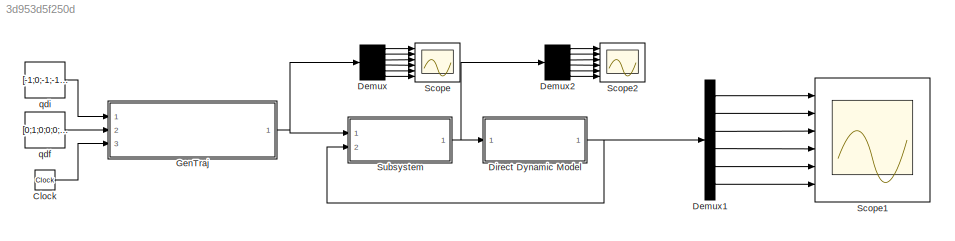
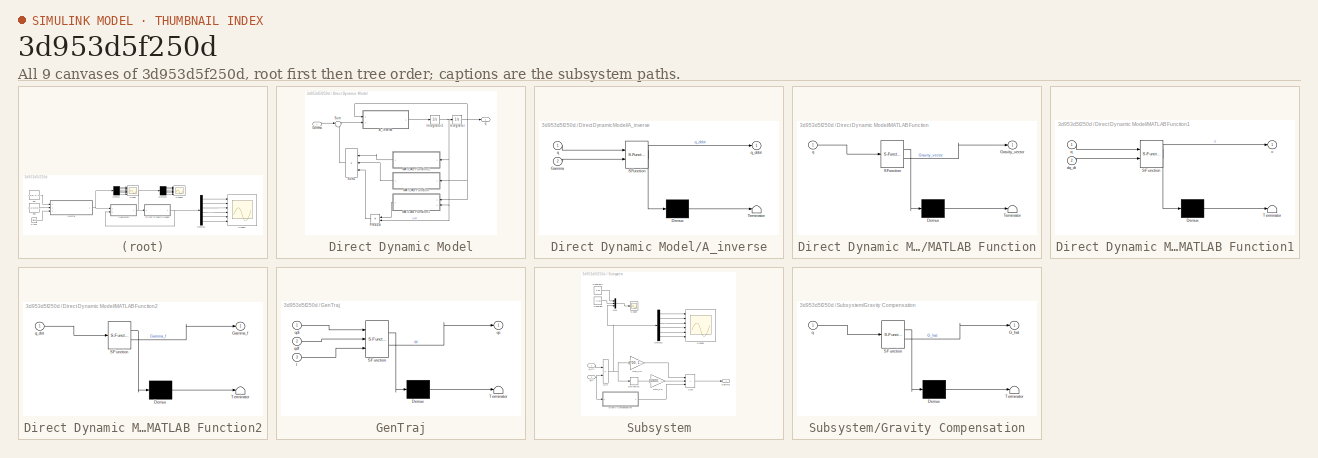
[diagram: thumbnail index - all 9 canvases of the model, root first then tree order]
MODEL slx_3d953d5f250d
KIND model
CONFIG AbsTol = auto
CONFIG EnableMultiTasking = off
CONFIG FixedStep = auto
CONFIG MaxStep = auto
CONFIG MinStep = auto
CONFIG RelTol = 1e-3
CONFIG SampleTimeConstraint = Unconstrained
CONFIG SolverName = VariableStepAuto
CONFIG StartTime = 0.0
CONFIG StopTime = 1
BLOCK [Clock] Clock
BLOCK [Demux] Demux
  Outputs = 6
  Ports = [1, 6]
BLOCK [Demux] Demux1
  Outputs = 6
  Ports = [1, 6]
BLOCK [Demux] Demux2
  Outputs = 6
  Ports = [1, 6]
BLOCK [SubSystem] Direct Dynamic Model
  Ports = [1, 1]
  RequestExecContextInheritance = off
BLOCK [SubSystem] Direct Dynamic Model/A_inverse
  ErrorFcn = Stateflow.Translate.translate
  PermitHierarchicalResolution = ExplicitOnly
  Ports = [2, 1]
  RequestExecContextInheritance = off
  SFBlockType = MATLAB Function
  TreatAsAtomicUnit = on
BLOCK [Demux] Direct Dynamic Model/A_inverse/ Demux 
  Outputs = 1
  Ports = [1, 1]
BLOCK [S-Function] Direct Dynamic Model/A_inverse/ SFunction 
  EnableBusSupport = on
  FunctionName = sf_sfun
  PortCounts = [2 2]
  Ports = [2, 2]
  SFcnIsStateOwnerBlock = off
  SFunctionDeploymentMode = off
  Tag = Stateflow S-Function 2
BLOCK [Terminator] Direct Dynamic Model/A_inverse/ Terminator 
BLOCK [Inport] Direct Dynamic Model/A_inverse/Gamma
  Port = 2
BLOCK [Inport] Direct Dynamic Model/A_inverse/q
BLOCK [Outport] Direct Dynamic Model/A_inverse/q_ddot
BLOCK [Inport] Direct Dynamic Model/Gamma
BLOCK [Integrator] Direct Dynamic Model/Integrator
  InitialCondition = [-1,\n0,\n-1,\n-1,\n-1,\n-1]
  Ports = [1, 1]
BLOCK [Integrator] Direct Dynamic Model/Integrator1
  Ports = [1, 1]
BLOCK [SubSystem] Direct Dynamic Model/MATLAB Function
  ErrorFcn = Stateflow.Translate.translate
  PermitHierarchicalResolution = ExplicitOnly
  Ports = [1, 1]
  RequestExecContextInheritance = off
  SFBlockType = MATLAB Function
  TreatAsAtomicUnit = on
BLOCK [Demux] Direct Dynamic Model/MATLAB Function/ Demux 
  Outputs = 1
  Ports = [1, 1]
BLOCK [S-Function] Direct Dynamic Model/MATLAB Function/ SFunction 
  EnableBusSupport = on
  FunctionName = sf_sfun
  PortCounts = [1 2]
  Ports = [1, 2]
  SFcnIsStateOwnerBlock = off
  SFunctionDeploymentMode = off
  Tag = Stateflow S-Function 1
BLOCK [Terminator] Direct Dynamic Model/MATLAB Function/ Terminator 
BLOCK [Outport] Direct Dynamic Model/MATLAB Function/Gravity_vector
BLOCK [Inport] Direct Dynamic Model/MATLAB Function/q
BLOCK [SubSystem] Direct Dynamic Model/MATLAB Function1
  ErrorFcn = Stateflow.Translate.translate
  PermitHierarchicalResolution = ExplicitOnly
  Ports = [2, 1]
  RequestExecContextInheritance = off
  SFBlockType = MATLAB Function
  TreatAsAtomicUnit = on
BLOCK [Demux] Direct Dynamic Model/MATLAB Function1/ Demux 
  Outputs = 1
  Ports = [1, 1]
BLOCK [S-Function] Direct Dynamic Model/MATLAB Function1/ SFunction 
  EnableBusSupport = on
  FunctionName = sf_sfun
  PortCounts = [2 2]
  Ports = [2, 2]
  SFcnIsStateOwnerBlock = off
  SFunctionDeploymentMode = off
  Tag = Stateflow S-Function 5
BLOCK [Terminator] Direct Dynamic Model/MATLAB Function1/ Terminator 
BLOCK [Outport] Direct Dynamic Model/MATLAB Function1/c
BLOCK [Inport] Direct Dynamic Model/MATLAB Function1/dq_dt
  Port = 2
BLOCK [Inport] Direct Dynamic Model/MATLAB Function1/q
BLOCK [SubSystem] Direct Dynamic Model/MATLAB Function2
  ErrorFcn = Stateflow.Translate.translate
  PermitHierarchicalResolution = ExplicitOnly
  Ports = [1, 1]
  RequestExecContextInheritance = off
  SFBlockType = MATLAB Function
  TreatAsAtomicUnit = on
BLOCK [Demux] Direct Dynamic Model/MATLAB Function2/ Demux 
  Outputs = 1
  Ports = [1, 1]
BLOCK [S-Function] Direct Dynamic Model/MATLAB Function2/ SFunction 
  EnableBusSupport = on
  FunctionName = sf_sfun
  PortCounts = [1 2]
  Ports = [1, 2]
  SFcnIsStateOwnerBlock = off
  SFunctionDeploymentMode = off
  Tag = Stateflow S-Function 6
BLOCK [Terminator] Direct Dynamic Model/MATLAB Function2/ Terminator 
BLOCK [Outport] Direct Dynamic Model/MATLAB Function2/Gamma_f
BLOCK [Inport] Direct Dynamic Model/MATLAB Function2/q_dot
BLOCK [Product] Direct Dynamic Model/Product
  Ports = [2, 1]
BLOCK [Sum] Direct Dynamic Model/Sum
  Inputs = |+-
  Ports = [2, 1]
BLOCK [Sum] Direct Dynamic Model/Sum1
  IconShape = rectangular
  Inputs = +++
  Ports = [3, 1]
BLOCK [Outport] Direct Dynamic Model/q
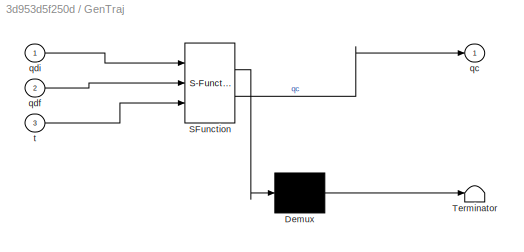
BLOCK [SubSystem] GenTraj
  ErrorFcn = Stateflow.Translate.translate
  PermitHierarchicalResolution = ExplicitOnly
  Ports = [3, 1]
  RequestExecContextInheritance = off
  SFBlockType = MATLAB Function
  TreatAsAtomicUnit = on
BLOCK [Demux] GenTraj/ Demux 
  Outputs = 1
  Ports = [1, 1]
BLOCK [S-Function] GenTraj/ SFunction 
  EnableBusSupport = on
  FunctionName = sf_sfun
  PortCounts = [3 2]
  Ports = [3, 2]
  SFcnIsStateOwnerBlock = off
  SFunctionDeploymentMode = off
  Tag = Stateflow S-Function 3
BLOCK [Terminator] GenTraj/ Terminator 
BLOCK [Outport] GenTraj/qc
BLOCK [Inport] GenTraj/qdf
  Port = 2
BLOCK [Inport] GenTraj/qdi
BLOCK [Inport] GenTraj/t
  Port = 3
BLOCK [Scope] Scope
  Floating = off
  NumInputPorts = 6
  Ports = [6]
  ScopeSpecificationString = Simulink.scopes.TimeScopeBlockCfg('CurrentConfiguration', extmgr.ConfigurationSet(extmgr.Configuration('Core','General UI',true),extmgr.Configuration('Core','Source UI',true),extmgr.Configuration('Sources','WiredSimulink',true),extmgr.Configuration('Visuals','Time Domain',true,'SerializedDisplays',{struct('MinYLimReal','-1.125','MaxYLimReal','0.125','YLabelReal','','MinYLimMag','0.00000','MaxYLimM...<+4758ch>
BLOCK [Scope] Scope1
  Floating = off
  NumInputPorts = 6
  Ports = [6]
  ScopeSpecificationString = Simulink.scopes.TimeScopeBlockCfg('CurrentConfiguration', extmgr.ConfigurationSet(extmgr.Configuration('Core','General UI',true),extmgr.Configuration('Core','Source UI',true),extmgr.Configuration('Sources','WiredSimulink',true,'DataLoggingVariableName','ScopeData1'),extmgr.Configuration('Visuals','Time Domain',true,'SerializedDisplays',{struct('MinYLimReal','-1.12674','MaxYLimReal','0.14062','YLab...<+4855ch>
BLOCK [Scope] Scope2
  Floating = off
  NumInputPorts = 6
  Ports = [6]
  ScopeSpecificationString = Simulink.scopes.TimeScopeBlockCfg('CurrentConfiguration', extmgr.ConfigurationSet(extmgr.Configuration('Core','General UI',true),extmgr.Configuration('Core','Source UI',true),extmgr.Configuration('Sources','WiredSimulink',true,'DataLoggingVariableName','ScopeData2'),extmgr.Configuration('Visuals','Time Domain',true,'SerializedDisplays',{struct('MinYLimReal','-566.80192','MaxYLimReal','341.01203','...<+4918ch>
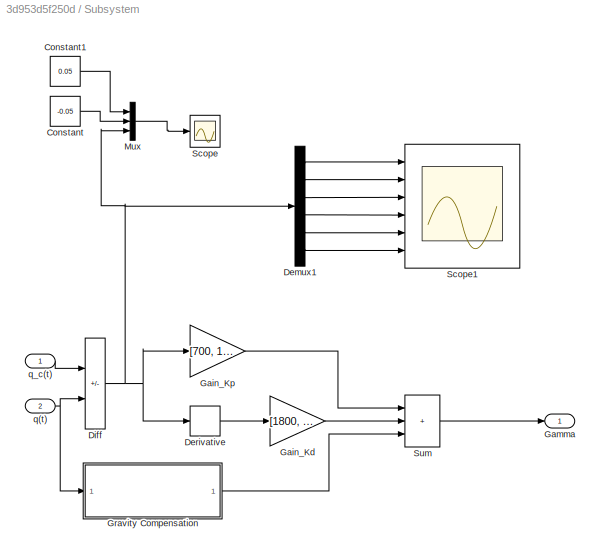
BLOCK [SubSystem] Subsystem
  Ports = [2, 1]
  RequestExecContextInheritance = off
BLOCK [Constant] Subsystem/Constant
  Value = -0.05
BLOCK [Constant] Subsystem/Constant1
  Value = 0.05
BLOCK [Demux] Subsystem/Demux1
  Outputs = 6
  Ports = [1, 6]
BLOCK [Derivative] Subsystem/Derivative
BLOCK [Sum] Subsystem/Diff
  IconShape = rectangular
  Inputs = +-
  Ports = [2, 1]
BLOCK [Gain] Subsystem/Gain_Kd
  Gain = [1800, 1300, 300, 5, 5, 5]
BLOCK [Gain] Subsystem/Gain_Kp
  Gain = [700, 1500, 1200, 1200, 1200, 1200]
BLOCK [Outport] Subsystem/Gamma
BLOCK [SubSystem] Subsystem/Gravity Compensation
  ErrorFcn = Stateflow.Translate.translate
  PermitHierarchicalResolution = ExplicitOnly
  Ports = [1, 1]
  RequestExecContextInheritance = off
  SFBlockType = MATLAB Function
  TreatAsAtomicUnit = on
BLOCK [Demux] Subsystem/Gravity Compensation/ Demux 
  Outputs = 1
  Ports = [1, 1]
BLOCK [S-Function] Subsystem/Gravity Compensation/ SFunction 
  EnableBusSupport = on
  FunctionName = sf_sfun
  PortCounts = [1 2]
  Ports = [1, 2]
  SFcnIsStateOwnerBlock = off
  SFunctionDeploymentMode = off
  Tag = Stateflow S-Function 4
BLOCK [Terminator] Subsystem/Gravity Compensation/ Terminator 
BLOCK [Outport] Subsystem/Gravity Compensation/G_hat
BLOCK [Inport] Subsystem/Gravity Compensation/q
BLOCK [Mux] Subsystem/Mux
  DisplayOption = bar
  Inputs = 3
  Ports = [3, 1]
BLOCK [Scope] Subsystem/Scope
  Floating = off
  NumInputPorts = 1
  Ports = [1]
  ScopeSpecificationString = Simulink.scopes.TimeScopeBlockCfg('CurrentConfiguration', extmgr.ConfigurationSet(extmgr.Configuration('Core','General UI',true),extmgr.Configuration('Core','Source UI',true),extmgr.Configuration('Sources','WiredSimulink',true,'DataLoggingVariableName','ScopeData3'),extmgr.Configuration('Visuals','Time Domain',true,'SerializedDisplays',{struct('MinYLimReal','-0.0625','MaxYLimReal','0.0625','YLabel...<+1640ch>
BLOCK [Scope] Subsystem/Scope1
  Floating = off
  NumInputPorts = 6
  Ports = [6]
  ScopeSpecificationString = Simulink.scopes.TimeScopeBlockCfg('CurrentConfiguration', extmgr.ConfigurationSet(extmgr.Configuration('Core','General UI',true),extmgr.Configuration('Core','Source UI',true),extmgr.Configuration('Sources','WiredSimulink',true,'DataLoggingVariableName','ScopeData1'),extmgr.Configuration('Visuals','Time Domain',true,'SerializedDisplays',{struct('MinYLimReal','-0.01806','MaxYLimReal','0.02369','YLab...<+4858ch>
BLOCK [Sum] Subsystem/Sum
  IconShape = rectangular
  Inputs = +++
  Ports = [3, 1]
BLOCK [Inport] Subsystem/q(t)
  Port = 2
BLOCK [Inport] Subsystem/q_c(t)
BLOCK [Constant] qdf
  Value = [0;1;0;0;0;0]
BLOCK [Constant] qdi
  Value = [-1;0;-1;-1;-1;-1]
LINE Clock:1 -> GenTraj:3
LINE Demux1:1 -> Scope1:1
LINE Demux1:2 -> Scope1:2
LINE Demux1:3 -> Scope1:3
LINE Demux1:4 -> Scope1:4
LINE Demux1:5 -> Scope1:5
LINE Demux1:6 -> Scope1:6
LINE Demux2:1 -> Scope2:1
LINE Demux2:2 -> Scope2:2
LINE Demux2:3 -> Scope2:3
LINE Demux2:4 -> Scope2:4
LINE Demux2:5 -> Scope2:5
LINE Demux2:6 -> Scope2:6
LINE Demux:1 -> Scope:1
LINE Demux:2 -> Scope:2
LINE Demux:3 -> Scope:3
LINE Demux:4 -> Scope:4
LINE Demux:5 -> Scope:5
LINE Demux:6 -> Scope:6
LINE Direct Dynamic Model/A_inverse:1 -> Direct Dynamic Model/Integrator1:1
LINE Direct Dynamic Model/Gamma:1 -> Direct Dynamic Model/Sum:1
NET Direct Dynamic Model/Integrator1:1 -> Direct Dynamic Model/Integrator:1, Direct Dynamic Model/MATLAB Function1:2, Direct Dynamic Model/MATLAB Function2:1, Direct Dynamic Model/Product:2
NET Direct Dynamic Model/Integrator:1 -> Direct Dynamic Model/A_inverse:1, Direct Dynamic Model/MATLAB Function1:1, Direct Dynamic Model/MATLAB Function:1, Direct Dynamic Model/q:1
LINE Direct Dynamic Model/MATLAB Function1:1 -> Direct Dynamic Model/Product:1
LINE Direct Dynamic Model/MATLAB Function2:1 -> Direct Dynamic Model/Sum1:1
LINE Direct Dynamic Model/MATLAB Function:1 -> Direct Dynamic Model/Sum1:2
LINE Direct Dynamic Model/Product:1 -> Direct Dynamic Model/Sum1:3
LINE Direct Dynamic Model/Sum1:1 -> Direct Dynamic Model/Sum:2
LINE Direct Dynamic Model/Sum:1 -> Direct Dynamic Model/A_inverse:2
NET Direct Dynamic Model:1 -> Demux1:1, Subsystem:2
NET GenTraj:1 -> Demux:1, Subsystem:1
LINE Subsystem/Constant1:1 -> Subsystem/Mux:1
LINE Subsystem/Constant:1 -> Subsystem/Mux:2
LINE Subsystem/Demux1:1 -> Subsystem/Scope1:1
LINE Subsystem/Demux1:2 -> Subsystem/Scope1:2
LINE Subsystem/Demux1:3 -> Subsystem/Scope1:3
LINE Subsystem/Demux1:4 -> Subsystem/Scope1:4
LINE Subsystem/Demux1:5 -> Subsystem/Scope1:5
LINE Subsystem/Demux1:6 -> Subsystem/Scope1:6
LINE Subsystem/Derivative:1 -> Subsystem/Gain_Kd:1
NET Subsystem/Diff:1 -> Subsystem/Demux1:1, Subsystem/Derivative:1, Subsystem/Gain_Kp:1, Subsystem/Mux:3
LINE Subsystem/Gain_Kd:1 -> Subsystem/Sum:2
LINE Subsystem/Gain_Kp:1 -> Subsystem/Sum:1
LINE Subsystem/Gravity Compensation:1 -> Subsystem/Sum:3
LINE Subsystem/Mux:1 -> Subsystem/Scope:1
LINE Subsystem/Sum:1 -> Subsystem/Gamma:1
NET Subsystem/q(t):1 -> Subsystem/Diff:2, Subsystem/Gravity Compensation:1
LINE Subsystem/q_c(t):1 -> Subsystem/Diff:1
NET Subsystem:1 -> Demux2:1, Direct Dynamic Model:1
LINE qdf:1 -> GenTraj:2
LINE qdi:1 -> GenTraj:1
note: NET lines group one-source signal fan-out (src -> all destinations, sorted); 1:1 wires keep LINE
CHART Direct Dynamic Model/A_inverse states=1 transitions=1
  STATE_LABEL 'eML_blk_kernel()'
  STATE_LABEL 'SCRIPT:\nfunction q_ddot = A_inverse(q,Gamma)\nd3=0.7;\nr1=0.5;\nr4=0.2;\nrE=0.1;\n\nangles_alpha=pi/2*[0;1;0;1;-1;1];\ndistances_d=[0;0;d3;0;0;0];\ndistances_r=[r1;0;0;r4;0;0];\n\nm = zeros(6);\nm(1) = 15;\nm(2) = 10;\nm(3) = 1;\nm(4) = 7;\nm(5) = 1;\nm(6) = 0.5;\n\nI = zeros(3,3,6);\nI(:,:,1) = [0.8, 0, 0.05; 0, 0.8, 0; 0.05, 0, 0.1];\nI(:,:,2) = [0.1, 0, 0.1; 0, 1.5, 0; 0.1, 0, 1.5];\nI(:,:,3) = [0.05, 0, 0; 0, 0.01...<+629ch>'
CHART GenTraj states=1 transitions=1
  STATE_LABEL 'eML_blk_kernel()'
  STATE_LABEL 'SCRIPT:\nfunction qc = GenTraj(qdi,qdf,t)\n    tf=0.5;\n    if (t<0)\n        qc = zeros(length(qdi),1)+qdi;\n    elseif (t>tf)\n        qc = (qdf-qdi)+qdi;   \n    else\n        traj = @(t) 10*(t/tf).^3 - 15*(t/tf).^4 + 6*(t/tf).^5;\n    \tqc = traj(t)*(qdf-qdi)+qdi;    \n    end\nend'
CHART Subsystem/Gravity Compensation states=1 transitions=1
  STATE_LABEL 'eML_blk_kernel()'
  STATE_LABEL 'SCRIPT:\nfunction G_hat = GravityCompensation(q)\nd3=0.7;\nr1=0.5;\nr4=0.2;\nrE=0.1;\n\nangles_alpha=pi/2*[0;1;0;1;-1;1];\ndistances_d=[0;0;d3;0;0;0];\ndistances_r=[r1;0;0;r4;0;0];\n\nm = zeros(6);\nm(1) = 15;\nm(2) = 10;\nm(3) = 1;\nm(4) = 7;\nm(5) = 1;\nm(6) = 0.5;\n\nI = zeros(3,3,6);\nI(:,:,1) = [0.8, 0, 0.05; 0, 0.8, 0; 0.05, 0, 0.1];\nI(:,:,2) = [0.1, 0, 0.1; 0, 1.5, 0; 0.1, 0, 1.5];\nI(:,:,3) = [0.05, 0, 0; 0, 0...<+601ch>'
CHART Direct Dynamic Model/MATLAB Function1 states=1 transitions=1
  STATE_LABEL 'eML_blk_kernel()'
  STATE_LABEL "SCRIPT:\nfunction c=ComputeCCTorques(q,dq_dt)\n\n    q = q';\n    % Initialisation\n    c=zeros(6,1);\n\n    % Param�tres\n    m=[15 10 1 7 1 0.5]';\n    iI = zeros(3,3,6);\n    iI(:,:,1)=[0.80 0 0.05 ; 0 0.80 0 ; 0.05  0  0.10];\n    iI(:,:,2)=[0.10  0  0.10; 0  1.50 0 ; 0.10  0  1.50];\n    iI(:,:,3)=[0.05 0 0 ; 0 0.01 0 ; 0 0 0.05];\n    iI(:,:,4)=[0.50 0 0 ; 0 0.50 0 ; 0 0 0.05];\n    iI(:,:,5)=[0.01 0 0 ; ...<+3608ch>"
CHART Direct Dynamic Model/MATLAB Function2 states=1 transitions=1
  STATE_LABEL 'eML_blk_kernel()'
  STATE_LABEL 'SCRIPT:\nfunction Gamma_f = ComputeFrictionTorque(q_dot)\nd3=0.7;\nr1=0.5;\nr4=0.2;\nrE=0.1;\n\nangles_alpha=pi/2*[0;1;0;1;-1;1];\ndistances_d=[0;0;d3;0;0;0];\ndistances_r=[r1;0;0;r4;0;0];\n\nm = zeros(6,1);\nm(1) = 15;\nm(2) = 10;\nm(3) = 1;\nm(4) = 7;\nm(5) = 1;\nm(6) = 0.5;\n\nI = zeros(3,3,6);\nI(:,:,1) = [0.8, 0, 0.05; 0, 0.8, 0; 0.05, 0, 0.1];\nI(:,:,2) = [0.1, 0, 0.1; 0, 1.5, 0; 0.1, 0, 1.5];\nI(:,:,3) = [0.05, ...<+663ch>'
CHART Direct Dynamic Model/MATLAB Function states=1 transitions=1
  STATE_LABEL 'eML_blk_kernel()'
  STATE_LABEL 'SCRIPT:\nfunction Gravity_vector = ComputeGravTorque(q)\n    theta=q+[0;0;pi/2;0;0;0];\n    \nd3=0.7;\nr1=0.5;\nr4=0.2;\nrE=0.1;\n\nangles_alpha=pi/2*[0;1;0;1;-1;1];\ndistances_d=[0;0;d3;0;0;0];\ndistances_r=[r1;0;0;r4;0;0];\n\nm = zeros(6,1);\nm(1) = 15;\nm(2) = 10;\nm(3) = 1;\nm(4) = 7;\nm(5) = 1;\nm(6) = 0.5;\n\nI = zeros(3,3,6);\nI(:,:,1) = [0.8, 0, 0.05; 0, 0.8, 0; 0.05, 0, 0.1];\nI(:,:,2) = [0.1, 0, 0.1; 0, 1.5, 0...<+890ch>'
CHART  states=0 transitions=0
CHART  states=0 transitions=0
CHART  states=0 transitions=0
CHART  states=0 transitions=0
CHART  states=0 transitions=0
CHART  states=0 transitions=0
